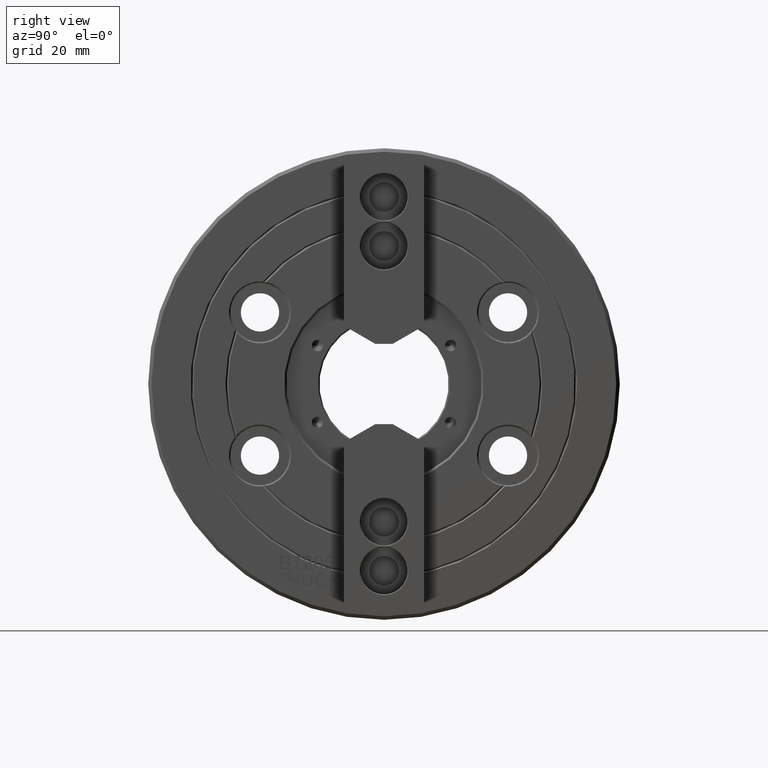
[diagram: clean part render]
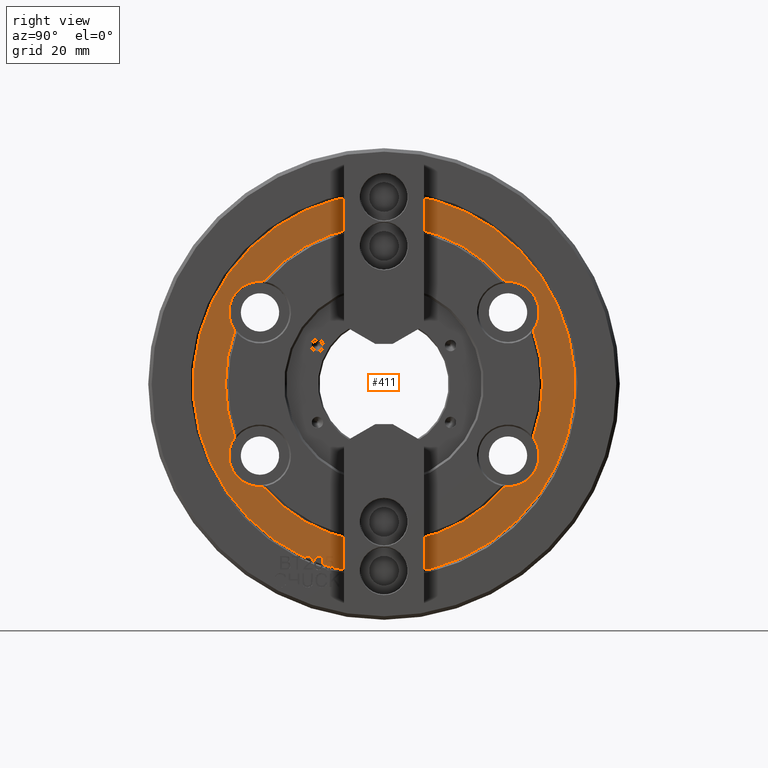
[diagram: same view with one face highlighted and labeled with its STEP entity id]
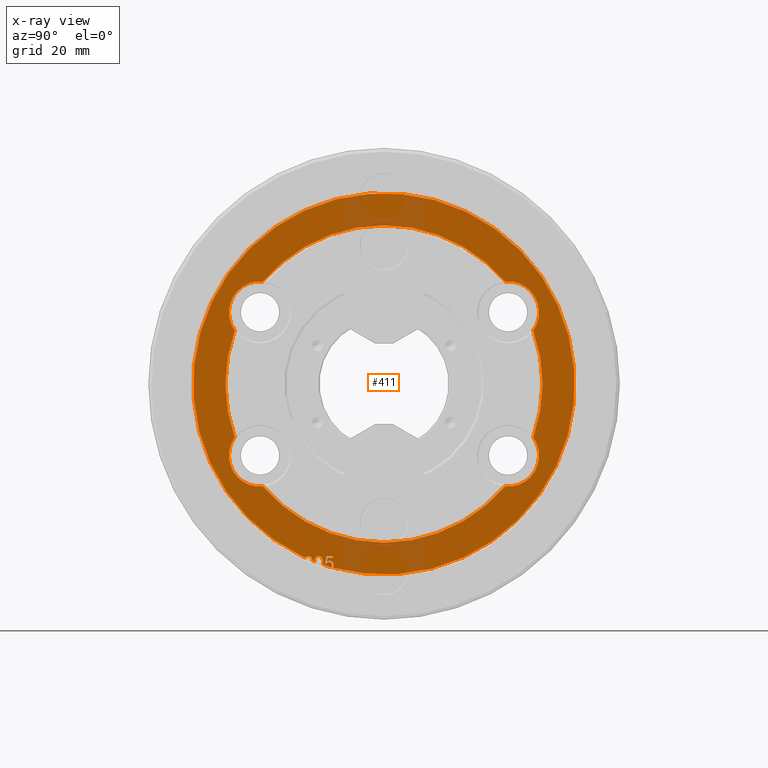
[diagram: x-ray of the same camera — body ghosted, the highlighted face saturated]
A machine part, right view. The second image highlights one B-rep face of the part: STEP entity #411.
The next image is the same camera in x-ray: the body ghosted, the highlighted face saturated — about 9% of this face is hidden behind the body in this view.
In plain terms, the highlighted planar face has unit normal (1, 0, 0).
Its self-contained STEP definition (entity closure, byte-faithful):
#411 = ADVANCED_FACE( '', ( #943, #944 ), #945, .T. );
#943 = FACE_BOUND( '', #1625, .T. );
#944 = FACE_OUTER_BOUND( '', #1626, .T. );
#945 = PLANE( '', #1627 );
#1625 = EDGE_LOOP( '', ( #2847, #2848, #2849, #2850, #2851, #2852, #2853, #2854 ) );
#1626 = EDGE_LOOP( '', ( #2855, #2856, #2857, #2858, #2859, #2860, #2861, #2862, #2863, #2864, #2865, #2866, #2867, #2868, #2869, #2870 ) );
#1627 = AXIS2_PLACEMENT_3D( '', #2871, #2872, #2873 );
#2847 = ORIENTED_EDGE( '', *, *, #4351, .T. );
#2848 = ORIENTED_EDGE( '', *, *, #4126, .T. );
#2849 = ORIENTED_EDGE( '', *, *, #4352, .T. );
#2850 = ORIENTED_EDGE( '', *, *, #4260, .T. );
#2851 = ORIENTED_EDGE( '', *, *, #4240, .T. );
#2852 = ORIENTED_EDGE( '', *, *, #4247, .T. );
#2853 = ORIENTED_EDGE( '', *, *, #4084, .T. );
#2854 = ORIENTED_EDGE( '', *, *, #4353, .T. );
#2855 = ORIENTED_EDGE( '', *, *, #4354, .T. );
#2856 = ORIENTED_EDGE( '', *, *, #4355, .T. );
#2857 = ORIENTED_EDGE( '', *, *, #4158, .F. );
#2858 = ORIENTED_EDGE( '', *, *, #4020, .T. );
#2859 = ORIENTED_EDGE( '', *, *, #4356, .T. );
#2860 = ORIENTED_EDGE( '', *, *, #4357, .F. );
#2861 = ORIENTED_EDGE( '', *, *, #4358, .T. );
#2862 = ORIENTED_EDGE( '', *, *, #4359, .F. );
#2863 = ORIENTED_EDGE( '', *, *, #4143, .T. );
#2864 = ORIENTED_EDGE( '', *, *, #4233, .F. );
#2865 = ORIENTED_EDGE( '', *, *, #4360, .T. );
#2866 = ORIENTED_EDGE( '', *, *, #4361, .T. );
#2867 = ORIENTED_EDGE( '', *, *, #4148, .T. );
#2868 = ORIENTED_EDGE( '', *, *, #4311, .T. );
#2869 = ORIENTED_EDGE( '', *, *, #4324, .T. );
#2870 = ORIENTED_EDGE( '', *, *, #4362, .T. );
#2871 = CARTESIAN_POINT( '', ( 30.0014536930733, 0.000000000000000, 54.6000000000000 ) );
#2872 = DIRECTION( '', ( 1.00000000000000, 0.000000000000000, 1.28379282215539E-032 ) );
#2873 = DIRECTION( '', ( 1.28379282215539E-032, 0.000000000000000, -1.00000000000000 ) );
#4020 = EDGE_CURVE( '', #4674, #4672, #4675, .T. );
#4084 = EDGE_CURVE( '', #4787, #4785, #4788, .T. );
#4126 = EDGE_CURVE( '', #4849, #4853, #4855, .F. );
#4143 = EDGE_CURVE( '', #4878, #4876, #4879, .T. );
#4148 = EDGE_CURVE( '', #4886, #4887, #4888, .T. );
#4158 = EDGE_CURVE( '', #4674, #4904, #4905, .T. );
#4233 = EDGE_CURVE( '', #5026, #4876, #5028, .T. );
#4240 = EDGE_CURVE( '', #5039, #5037, #5040, .T. );
#4247 = EDGE_CURVE( '', #5037, #4787, #5049, .F. );
#4260 = EDGE_CURVE( '', #5068, #5039, #5071, .F. );
#4311 = EDGE_CURVE( '', #4887, #5143, #5144, .T. );
#4324 = EDGE_CURVE( '', #5143, #5161, #5162, .T. );
#4351 = EDGE_CURVE( '', #5204, #4849, #5205, .T. );
#4352 = EDGE_CURVE( '', #4853, #5068, #5206, .T. );
#4353 = EDGE_CURVE( '', #4785, #5204, #5207, .F. );
#4354 = EDGE_CURVE( '', #5208, #5209, #5210, .T. );
#4355 = EDGE_CURVE( '', #5209, #4904, #5211, .T. );
#4356 = EDGE_CURVE( '', #4672, #5212, #5213, .T. );
#4357 = EDGE_CURVE( '', #5214, #5212, #5215, .T. );
#4358 = EDGE_CURVE( '', #5214, #5216, #5217, .T. );
#4359 = EDGE_CURVE( '', #4878, #5216, #5218, .T. );
#4360 = EDGE_CURVE( '', #5026, #5219, #5220, .T. );
#4361 = EDGE_CURVE( '', #5219, #4886, #5221, .T. );
#4362 = EDGE_CURVE( '', #5161, #5208, #5222, .T. );
#4672 = VERTEX_POINT( '', #5608 );
#4674 = VERTEX_POINT( '', #5611 );
#4675 = LINE( '', #5612, #5613 );
#4785 = VERTEX_POINT( '', #5859 );
#4787 = VERTEX_POINT( '', #5864 );
#4788 = CIRCLE( '', #5865, 45.4000000000000 );
#4849 = VERTEX_POINT( '', #5974 );
#4853 = VERTEX_POINT( '', #5981 );
#4855 = CIRCLE( '', #5986, 8.90000000000000 );
#4876 = VERTEX_POINT( '', #6069 );
#4878 = VERTEX_POINT( '', #6074 );
#4879 = B_SPLINE_CURVE_WITH_KNOTS( '', 3, ( #6075, #6076, #6077, #6078, #6079, #6080, #6081, #6082, #6083, #6084, #6085, #6086, #6087, #6088, #6089, #6090, #6091, #6092, #6093, #6094, #6095, #6096 ), .UNSPECIFIED., .F., .F., ( 4, 3, 3, 2, 3, 2, 3, 2, 4 ), ( 0.0367681626352387, 0.105434167342110, 0.179049453588800, 0.251127970778028, 0.303548710552013, 0.358323273165774, 0.413097835779536, 0.500494820049122, 0.538690033067721 ), .UNSPECIFIED. );
#4886 = VERTEX_POINT( '', #6120 );
#4887 = VERTEX_POINT( '', #6121 );
#4888 = B_SPLINE_CURVE_WITH_KNOTS( '', 3, ( #6122, #6123, #6124, #6125 ), .UNSPECIFIED., .F., .F., ( 4, 4 ), ( 0.293395367672250, 0.397760632236867 ), .UNSPECIFIED. );
#4904 = VERTEX_POINT( '', #6150 );
#4905 = CIRCLE( '', #6151, 54.6000000000000 );
#5026 = VERTEX_POINT( '', #6409 );
#5028 = CIRCLE( '', #6416, 54.6000000000000 );
#5037 = VERTEX_POINT( '', #6434 );
#5039 = VERTEX_POINT( '', #6439 );
#5040 = CIRCLE( '', #6440, 45.4000000000000 );
#5049 = CIRCLE( '', #6476, 8.90000000000000 );
#5068 = VERTEX_POINT( '', #6549 );
#5071 = CIRCLE( '', #6555, 8.90000000000000 );
#5143 = VERTEX_POINT( '', #6663 );
#5144 = B_SPLINE_CURVE_WITH_KNOTS( '', 3, ( #6664, #6665, #6666, #6667 ), .UNSPECIFIED., .F., .F., ( 4, 4 ), ( 0.397760632236867, 0.496689020349862 ), .UNSPECIFIED. );
#5161 = VERTEX_POINT( '', #6690 );
#5162 = B_SPLINE_CURVE_WITH_KNOTS( '', 3, ( #6691, #6692, #6693, #6694 ), .UNSPECIFIED., .F., .F., ( 4, 4 ), ( 0.496689020349862, 0.519958466478591 ), .UNSPECIFIED. );
#5204 = VERTEX_POINT( '', #6815 );
#5205 = CIRCLE( '', #6816, 45.4000000000000 );
#5206 = CIRCLE( '', #6817, 45.4000000000000 );
#5207 = CIRCLE( '', #6818, 8.90000000000000 );
#5208 = VERTEX_POINT( '', #6819 );
#5209 = VERTEX_POINT( '', #6820 );
#5210 = B_SPLINE_CURVE_WITH_KNOTS( '', 3, ( #6821, #6822, #6823, #6824 ), .UNSPECIFIED., .F., .F., ( 4, 4 ), ( 0.599473488107047, 0.654496648884699 ), .UNSPECIFIED. );
#5211 = B_SPLINE_CURVE_WITH_KNOTS( '', 3, ( #6825, #6826, #6827, #6828, #6829, #6830, #6831, #6832, #6833, #6834 ), .UNSPECIFIED., .F., .F., ( 4, 2, 2, 2, 4 ), ( 0.654496648884699, 0.693469355268776, 0.745039300080029, 0.796609244891281, 0.835860501392507 ), .UNSPECIFIED. );
#5212 = VERTEX_POINT( '', #6835 );
#5213 = B_SPLINE_CURVE_WITH_KNOTS( '', 1, ( #6836, #6837 ), .UNSPECIFIED., .F., .F., ( 2, 2 ), ( 0.591787439613527, 0.596155383523283 ), .UNSPECIFIED. );
#5214 = VERTEX_POINT( '', #6838 );
#5215 = CIRCLE( '', #6839, 54.6000000000000 );
#5216 = VERTEX_POINT( '', #6840 );
#5217 = B_SPLINE_CURVE_WITH_KNOTS( '', 3, ( #6841, #6842, #6843, #6844, #6845, #6846, #6847, #6848, #6849, #6850, #6851, #6852, #6853 ), .UNSPECIFIED., .F., .F., ( 4, 2, 2, 3, 2, 4 ), ( 0.564974290061487, 0.572795663442450, 0.624845875641562, 0.677260075338571, 0.725630771610046, 0.738165066123131 ), .UNSPECIFIED. );
#5218 = CIRCLE( '', #6854, 54.6000000000000 );
#5219 = VERTEX_POINT( '', #6855 );
#5220 = B_SPLINE_CURVE_WITH_KNOTS( '', 3, ( #6856, #6857, #6858, #6859, #6860, #6861, #6862, #6863, #6864, #6865, #6866, #6867, #6868, #6869 ), .UNSPECIFIED., .F., .F., ( 4, 2, 3, 2, 3, 4 ), ( 0.129331647433458, 0.158807898547146, 0.193083264449612, 0.228047085043302, 0.249674190565171, 0.270284504197627 ), .UNSPECIFIED. );
#5221 = B_SPLINE_CURVE_WITH_KNOTS( '', 3, ( #6870, #6871, #6872, #6873 ), .UNSPECIFIED., .F., .F., ( 4, 4 ), ( 0.270284504197627, 0.293395367672250 ), .UNSPECIFIED. );
#5222 = B_SPLINE_CURVE_WITH_KNOTS( '', 3, ( #6874, #6875, #6876, #6877 ), .UNSPECIFIED., .F., .F., ( 4, 4 ), ( 0.519958466478591, 0.599473488107047 ), .UNSPECIFIED. );
#5608 = CARTESIAN_POINT( '', ( 30.0014536930733, -23.3321259189410, -49.3031205186768 ) );
#5611 = CARTESIAN_POINT( '', ( 30.0014536930733, -23.4598019412107, -49.3031205186768 ) );
#5612 = CARTESIAN_POINT( '', ( 30.0014536930733, 0.000000000000000, -49.3031205186768 ) );
#5613 = VECTOR( '', #7698, 1000.00000000000 );
#5859 = CARTESIAN_POINT( '', ( 30.0014536930733, 42.7394770767076, -15.3132981166560 ) );
#5864 = CARTESIAN_POINT( '', ( 30.0014536930733, 42.7394770767076, 15.3132981166560 ) );
#5865 = AXIS2_PLACEMENT_3D( '', #7753, #7754, #7755 );
#5974 = CARTESIAN_POINT( '', ( 30.0014536930733, -34.6314437231023, -29.3568238345635 ) );
#5981 = CARTESIAN_POINT( '', ( 30.0014536930733, -42.7394770767076, -15.3132981166560 ) );
#5986 = AXIS2_PLACEMENT_3D( '', #7800, #7801, #7802 );
#6069 = CARTESIAN_POINT( '', ( 30.0014536930733, -17.4756185199538, -51.7277754919448 ) );
#6074 = CARTESIAN_POINT( '', ( 30.0014536930733, -19.9667440023938, -50.8181968781162 ) );
#6075 = CARTESIAN_POINT( '', ( 30.0014536930733, -19.9667440023939, -50.8181968781172 ) );
#6076 = CARTESIAN_POINT( '', ( 30.0014536930733, -19.9454807961902, -50.5610671677249 ) );
#6077 = CARTESIAN_POINT( '', ( 30.0014536930733, -19.9041721597437, -50.3410814226699 ) );
#6078 = CARTESIAN_POINT( '', ( 30.0014536930733, -19.8421066014910, -50.1582396429523 ) );
#6079 = CARTESIAN_POINT( '', ( 30.0014536930733, -19.7470733001509, -49.8782766741397 ) );
#6080 = CARTESIAN_POINT( '', ( 30.0014536930733, -19.6077215403190, -49.6637129204797 ) );
#6081 = CARTESIAN_POINT( '', ( 30.0014536930733, -19.4222740193918, -49.5117489797199 ) );
#6082 = CARTESIAN_POINT( '', ( 30.0014536930733, -19.2380892109556, -49.3608197616958 ) );
#6083 = CARTESIAN_POINT( '', ( 30.0014536930733, -19.0024414372926, -49.2876665585995 ) );
#6084 = CARTESIAN_POINT( '', ( 30.0014536930733, -18.5130660348458, -49.2876665585995 ) );
#6085 = CARTESIAN_POINT( '', ( 30.0014536930733, -18.3301941739314, -49.3288771188055 ) );
#6086 = CARTESIAN_POINT( '', ( 30.0014536930733, -18.1705032531329, -49.4112982392176 ) );
#6087 = CARTESIAN_POINT( '', ( 30.0014536930733, -18.0117964587979, -49.4932114233906 ) );
#6088 = CARTESIAN_POINT( '', ( 30.0014536930733, -17.8820293316906, -49.6173510402479 ) );
#6089 = CARTESIAN_POINT( '', ( 30.0014536930733, -17.6811278506860, -49.9315815618191 ) );
#6090 = CARTESIAN_POINT( '', ( 30.0014536930733, -17.6012823902868, -50.1247560627849 ) );
#6091 = CARTESIAN_POINT( '', ( 30.0014536930733, -17.5446178700035, -50.3488384839053 ) );
#6092 = CARTESIAN_POINT( '', ( 30.0014536930733, -17.4871863768268, -50.5759539341953 ) );
#6093 = CARTESIAN_POINT( '', ( 30.0014536930733, -17.4570454295657, -50.8820001065711 ) );
#6094 = CARTESIAN_POINT( '', ( 30.0014536930733, -17.4570454295657, -51.4297930867506 ) );
#6095 = CARTESIAN_POINT( '', ( 30.0014536930733, -17.4632364596950, -51.5846942170019 ) );
#6096 = CARTESIAN_POINT( '', ( 30.0014536930733, -17.4756185199538, -51.7277754919444 ) );
#6120 = CARTESIAN_POINT( '', ( 30.0014536930733, -16.8852489067067, -51.3378919288506 ) );
#6121 = CARTESIAN_POINT( '', ( 30.0014536930733, -16.5066268848135, -49.3520580589214 ) );
#6122 = CARTESIAN_POINT( '', ( 30.0014536930733, -16.8852489067067, -51.3378919288506 ) );
#6123 = CARTESIAN_POINT( '', ( 30.0014536930733, -16.7590415660756, -50.6759473055409 ) );
#6124 = CARTESIAN_POINT( '', ( 30.0014536930733, -16.6328342254446, -50.0140026822312 ) );
#6125 = CARTESIAN_POINT( '', ( 30.0014536930733, -16.5066268848135, -49.3520580589214 ) );
#6150 = CARTESIAN_POINT( '', ( 30.0014536930733, -14.6015282585627, -52.6113616295432 ) );
#6151 = AXIS2_PLACEMENT_3D( '', #7813, #7814, #7815 );
#6409 = CARTESIAN_POINT( '', ( 30.0014536930733, -15.0664610344399, -52.4801081544017 ) );
#6416 = AXIS2_PLACEMENT_3D( '', #7874, #7875, #7876 );
#6434 = CARTESIAN_POINT( '', ( 30.0014536930733, 34.6314437231023, 29.3568238345635 ) );
#6439 = CARTESIAN_POINT( '', ( 30.0014536930733, -34.6314437231023, 29.3568238345635 ) );
#6440 = AXIS2_PLACEMENT_3D( '', #7880, #7881, #7882 );
#6476 = AXIS2_PLACEMENT_3D( '', #7885, #7886, #7887 );
#6549 = CARTESIAN_POINT( '', ( 30.0014536930733, -42.7394770767076, 15.3132981166560 ) );
#6555 = AXIS2_PLACEMENT_3D( '', #7891, #7892, #7893 );
#6663 = CARTESIAN_POINT( '', ( 30.0014536930733, -14.5903358352321, -49.3520580589214 ) );
#6664 = CARTESIAN_POINT( '', ( 30.0014536930733, -16.5066268848135, -49.3520580589214 ) );
#6665 = CARTESIAN_POINT( '', ( 30.0014536930733, -15.8678632016197, -49.3520580589214 ) );
#6666 = CARTESIAN_POINT( '', ( 30.0014536930733, -15.2290995184259, -49.3520580589214 ) );
#6667 = CARTESIAN_POINT( '', ( 30.0014536930733, -14.5903358352321, -49.3520580589214 ) );
#6690 = CARTESIAN_POINT( '', ( 30.0014536930733, -14.5903358352321, -49.8027985611751 ) );
#6691 = CARTESIAN_POINT( '', ( 30.0014536930733, -14.5903358352321, -49.3520580589214 ) );
#6692 = CARTESIAN_POINT( '', ( 30.0014536930733, -14.5903358352321, -49.5023048930060 ) );
#6693 = CARTESIAN_POINT( '', ( 30.0014536930733, -14.5903358352321, -49.6525517270906 ) );
#6694 = CARTESIAN_POINT( '', ( 30.0014536930733, -14.5903358352321, -49.8027985611751 ) );
#6815 = CARTESIAN_POINT( '', ( 30.0014536930733, 34.6314437231023, -29.3568238345635 ) );
#6816 = AXIS2_PLACEMENT_3D( '', #7961, #7962, #7963 );
#6817 = AXIS2_PLACEMENT_3D( '', #7964, #7965, #7966 );
#6818 = AXIS2_PLACEMENT_3D( '', #7967, #7968, #7969 );
#6819 = CARTESIAN_POINT( '', ( 30.0014536930733, -16.1305805229333, -49.8027985611751 ) );
#6820 = CARTESIAN_POINT( '', ( 30.0014536930733, -16.3366333239636, -50.8485165264037 ) );
#6821 = CARTESIAN_POINT( '', ( 30.0014536930733, -16.1305805229333, -49.8027985611751 ) );
#6822 = CARTESIAN_POINT( '', ( 30.0014536930733, -16.1992647899434, -50.1513712162513 ) );
#6823 = CARTESIAN_POINT( '', ( 30.0014536930733, -16.2679490569535, -50.4999438713275 ) );
#6824 = CARTESIAN_POINT( '', ( 30.0014536930733, -16.3366333239636, -50.8485165264037 ) );
#6825 = CARTESIAN_POINT( '', ( 30.0014536930733, -16.3366333239636, -50.8485165264037 ) );
#6826 = CARTESIAN_POINT( '', ( 30.0014536930733, -16.1048239228046, -50.6888256056053 ) );
#6827 = CARTESIAN_POINT( '', ( 30.0014536930733, -15.8627118815940, -50.6064044851932 ) );
#6828 = CARTESIAN_POINT( '', ( 30.0014536930733, -15.2703100786319, -50.6064044851932 ) );
#6829 = CARTESIAN_POINT( '', ( 30.0014536930733, -14.9844118172025, -50.7248848457856 ) );
#6830 = CARTESIAN_POINT( '', ( 30.0014536930733, -14.5207930148844, -51.1936549681294 ) );
#6831 = CARTESIAN_POINT( '', ( 30.0014536930733, -14.4048883143048, -51.4924315296233 ) );
#6832 = CARTESIAN_POINT( '', ( 30.0014536930733, -14.4048883143048, -52.1410885884577 ) );
#6833 = CARTESIAN_POINT( '', ( 30.0014536930733, -14.4708750400884, -52.3917322388481 ) );
#6834 = CARTESIAN_POINT( '', ( 30.0014536930733, -14.6015282585628, -52.6113616295432 ) );
#6835 = CARTESIAN_POINT( '', ( 30.0014536930733, -23.3321259189410, -49.3636698403054 ) );
#6836 = CARTESIAN_POINT( '', ( 30.0014536930733, -23.3321259189410, -49.3031205186768 ) );
#6837 = CARTESIAN_POINT( '', ( 30.0014536930733, -23.3321259189410, -49.3636698403054 ) );
#6838 = CARTESIAN_POINT( '', ( 30.0014536930733, -22.6827484242558, -49.6654097327498 ) );
#6839 = AXIS2_PLACEMENT_3D( '', #7970, #7971, #7972 );
#6840 = CARTESIAN_POINT( '', ( 30.0014536930733, -20.5233225387158, -50.5959803934249 ) );
#6841 = CARTESIAN_POINT( '', ( 30.0014536930733, -22.6827484242558, -49.6654097327498 ) );
#6842 = CARTESIAN_POINT( '', ( 30.0014536930733, -22.6540379164045, -49.6328232154920 ) );
#6843 = CARTESIAN_POINT( '', ( 30.0014536930733, -22.6232337200633, -49.6022053315291 ) );
#6844 = CARTESIAN_POINT( '', ( 30.0014536930733, -22.3714047341375, -49.3829659790760 ) );
#6845 = CARTESIAN_POINT( '', ( 30.0014536930733, -22.0777794926693, -49.2876665585995 ) );
#6846 = CARTESIAN_POINT( '', ( 30.0014536930733, -21.3385650689732, -49.2876665585995 ) );
#6847 = CARTESIAN_POINT( '', ( 30.0014536930733, -21.0423641674922, -49.3906929591146 ) );
#6848 = CARTESIAN_POINT( '', ( 30.0014536930733, -20.8260087264105, -49.5967457601449 ) );
#6849 = CARTESIAN_POINT( '', ( 30.0014536930733, -20.6083026716953, -49.8040848598736 ) );
#6850 = CARTESIAN_POINT( '', ( 30.0014536930733, -20.4988999047749, -50.0577889024501 ) );
#6851 = CARTESIAN_POINT( '', ( 30.0014536930733, -20.4988999047749, -50.4404735907009 ) );
#6852 = CARTESIAN_POINT( '', ( 30.0014536930733, -20.5069271477281, -50.5185614605193 ) );
#6853 = CARTESIAN_POINT( '', ( 30.0014536930733, -20.5233225387158, -50.5959803934249 ) );
#6854 = AXIS2_PLACEMENT_3D( '', #7973, #7974, #7975 );
#6855 = CARTESIAN_POINT( '', ( 30.0014536930733, -16.4422353844916, -51.4022834291726 ) );
#6856 = CARTESIAN_POINT( '', ( 30.0014536930733, -15.0664610344399, -52.4801081544017 ) );
#6857 = CARTESIAN_POINT( '', ( 30.0014536930733, -14.9641316960045, -52.3233225531079 ) );
#6858 = CARTESIAN_POINT( '', ( 30.0014536930733, -14.9122933368419, -52.1297484388601 ) );
#6859 = CARTESIAN_POINT( '', ( 30.0014536930733, -14.9122933368419, -51.6315171703187 ) );
#6860 = CARTESIAN_POINT( '', ( 30.0014536930733, -14.9869874772153, -51.4177373892498 ) );
#6861 = CARTESIAN_POINT( '', ( 30.0014536930733, -15.1389514179752, -51.2606221284642 ) );
#6862 = CARTESIAN_POINT( '', ( 30.0014536930733, -15.2896704444744, -51.1047939824227 ) );
#6863 = CARTESIAN_POINT( '', ( 30.0014536930733, -15.4892411797266, -51.0262370672923 ) );
#6864 = CARTESIAN_POINT( '', ( 30.0014536930733, -15.8936198017485, -51.0262370672923 ) );
#6865 = CARTESIAN_POINT( '', ( 30.0014536930733, -16.0327054424440, -51.0597206474597 ) );
#6866 = CARTESIAN_POINT( '', ( 30.0014536930733, -16.1537614630492, -51.1318391278203 ) );
#6867 = CARTESIAN_POINT( '', ( 30.0014536930733, -16.2755859649079, -51.2044154268000 ) );
#6868 = CARTESIAN_POINT( '', ( 30.0014536930733, -16.3726925641438, -51.2915300486188 ) );
#6869 = CARTESIAN_POINT( '', ( 30.0014536930733, -16.4422353844916, -51.4022834291726 ) );
#6870 = CARTESIAN_POINT( '', ( 30.0014536930733, -16.4422353844916, -51.4022834291726 ) );
#6871 = CARTESIAN_POINT( '', ( 30.0014536930733, -16.5899065585633, -51.3808195957319 ) );
#6872 = CARTESIAN_POINT( '', ( 30.0014536930733, -16.7375777326350, -51.3593557622913 ) );
#6873 = CARTESIAN_POINT( '', ( 30.0014536930733, -16.8852489067067, -51.3378919288506 ) );
#6874 = CARTESIAN_POINT( '', ( 30.0014536930733, -14.5903358352321, -49.8027985611751 ) );
#6875 = CARTESIAN_POINT( '', ( 30.0014536930733, -15.1037507311325, -49.8027985611751 ) );
#6876 = CARTESIAN_POINT( '', ( 30.0014536930733, -15.6171656270329, -49.8027985611751 ) );
#6877 = CARTESIAN_POINT( '', ( 30.0014536930733, -16.1305805229333, -49.8027985611751 ) );
#7698 = DIRECTION( '', ( 0.000000000000000, 1.00000000000000, 0.000000000000000 ) );
#7753 = CARTESIAN_POINT( '', ( 30.0014536930733, 0.000000000000000, -3.85215468700947E-031 ) );
#7754 = DIRECTION( '', ( -1.00000000000000, 0.000000000000000, -1.28379282215539E-032 ) );
#7755 = DIRECTION( '', ( -1.28379282215539E-032, 0.000000000000000, 1.00000000000000 ) );
#7800 = CARTESIAN_POINT( '', ( 30.0014536930733, -35.5070415551620, -20.5000000000000 ) );
#7801 = DIRECTION( '', ( 1.00000000000000, 2.45510954971797E-064, 1.28379282215539E-032 ) );
#7802 = DIRECTION( '', ( -1.28379282215539E-032, 1.22460635382238E-016, 1.00000000000000 ) );
#7813 = CARTESIAN_POINT( '', ( 30.0014536930733, 0.000000000000000, -3.85215468700947E-031 ) );
#7814 = DIRECTION( '', ( -1.00000000000000, 0.000000000000000, -1.28379282215539E-032 ) );
#7815 = DIRECTION( '', ( -1.28379282215539E-032, 0.000000000000000, 1.00000000000000 ) );
#7874 = CARTESIAN_POINT( '', ( 30.0014536930733, 0.000000000000000, -3.85215468700947E-031 ) );
#7875 = DIRECTION( '', ( -1.00000000000000, 0.000000000000000, -1.28379282215539E-032 ) );
#7876 = DIRECTION( '', ( -1.28379282215539E-032, 0.000000000000000, 1.00000000000000 ) );
#7880 = CARTESIAN_POINT( '', ( 30.0014536930733, 0.000000000000000, -3.85215468700947E-031 ) );
#7881 = DIRECTION( '', ( -1.00000000000000, 0.000000000000000, -1.28379282215539E-032 ) );
#7882 = DIRECTION( '', ( -1.28379282215539E-032, 0.000000000000000, 1.00000000000000 ) );
#7885 = CARTESIAN_POINT( '', ( 30.0014536930733, 35.5070415551620, 20.5000000000000 ) );
#7886 = DIRECTION( '', ( 1.00000000000000, 0.000000000000000, 1.28379282215539E-032 ) );
#7887 = DIRECTION( '', ( 1.28379282215539E-032, 0.000000000000000, -1.00000000000000 ) );
#7891 = CARTESIAN_POINT( '', ( 30.0014536930733, -35.5070415551620, 20.5000000000000 ) );
#7892 = DIRECTION( '', ( 1.00000000000000, 2.45510954971797E-064, 1.28379282215539E-032 ) );
#7893 = DIRECTION( '', ( -1.28379282215539E-032, 1.22460635382238E-016, 1.00000000000000 ) );
#7961 = CARTESIAN_POINT( '', ( 30.0014536930733, 0.000000000000000, -3.85215468700947E-031 ) );
#7962 = DIRECTION( '', ( -1.00000000000000, 0.000000000000000, -1.28379282215539E-032 ) );
#7963 = DIRECTION( '', ( -1.28379282215539E-032, 0.000000000000000, 1.00000000000000 ) );
#7964 = CARTESIAN_POINT( '', ( 30.0014536930733, 0.000000000000000, -3.85215468700947E-031 ) );
#7965 = DIRECTION( '', ( -1.00000000000000, 0.000000000000000, -1.28379282215539E-032 ) );
#7966 = DIRECTION( '', ( -1.28379282215539E-032, 0.000000000000000, 1.00000000000000 ) );
#7967 = CARTESIAN_POINT( '', ( 30.0014536930733, 35.5070415551620, -20.5000000000000 ) );
#7968 = DIRECTION( '', ( 1.00000000000000, 0.000000000000000, 1.28379282215539E-032 ) );
#7969 = DIRECTION( '', ( 1.28379282215539E-032, 0.000000000000000, -1.00000000000000 ) );
#7970 = CARTESIAN_POINT( '', ( 30.0014536930733, 0.000000000000000, -3.85215468700947E-031 ) );
#7971 = DIRECTION( '', ( -1.00000000000000, 0.000000000000000, -1.28379282215539E-032 ) );
#7972 = DIRECTION( '', ( -1.28379282215539E-032, 0.000000000000000, 1.00000000000000 ) );
#7973 = CARTESIAN_POINT( '', ( 30.0014536930733, 0.000000000000000, -3.85215468700947E-031 ) );
#7974 = DIRECTION( '', ( -1.00000000000000, 0.000000000000000, -1.28379282215539E-032 ) );
#7975 = DIRECTION( '', ( -1.28379282215539E-032, 0.000000000000000, 1.00000000000000 ) );